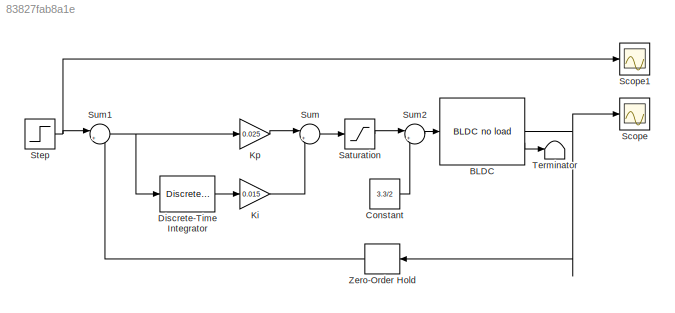
MODEL slx_83827fab8a1e
KIND model
CONFIG AbsTol = auto
CONFIG EnableMultiTasking = on
CONFIG FixedStep = auto
CONFIG MaxStep = auto
CONFIG MinStep = auto
CONFIG RelTol = 1e-3
CONFIG SampleTimeConstraint = Unconstrained
CONFIG SolverName = VariableStepAuto
CONFIG StartTime = 0.0
CONFIG StopTime = 10
BLOCK [Reference] BLDC  REF=aausat3_lib/Actuator Emulation/BLDC no load  (lib defined in mdl_4157f6465749, slx_d9305f96731e)
  SourceBlock = aausat3_lib/Actuator Emulation/BLDC no load
  SourceProductName = AAUSAT3
BLOCK [Constant] Constant
  Value = 3.3/2
BLOCK [DiscreteIntegrator] Discrete-Time Integrator
  ICPrevOutput = DiscIntNeverNeededParam
  ICPrevScaledInput = DiscIntNeverNeededParam
  InitialConditionSetting = Auto
  LimitOutput = on
  LowerSaturationLimit = -100
  SampleTime = 1/20
  UpperSaturationLimit = 100
BLOCK [Gain] Ki
  Gain = 0.015
BLOCK [Gain] Kp
  Gain = 0.025
BLOCK [Saturate] Saturation
  LowerLimit = -3.3/2
  UpperLimit = 3.3/2
BLOCK [Scope] Scope
  Floating = off
  NumInputPorts = 1
  ScopeSpecificationString = Simulink.scopes.TimeScopeBlockCfg('CurrentConfiguration', extmgr.ConfigurationSet(extmgr.Configuration('Core','General UI',true),extmgr.Configuration('Core','Source UI',true),extmgr.Configuration('Sources','WiredSimulink',true),extmgr.Configuration('Visuals','Time Domain',true,'SerializedDisplays',{struct('MinYLimReal','699.82532','MaxYLimReal','1701.57211','YLabelReal','','MinYLimMag','699.82532'...<+1749ch>
BLOCK [Scope] Scope1
  Floating = off
  NumInputPorts = 1
  ScopeSpecificationString = Simulink.scopes.TimeScopeBlockCfg('CurrentConfiguration', extmgr.ConfigurationSet(extmgr.Configuration('Core','General UI',true),extmgr.Configuration('Core','Source UI',true),extmgr.Configuration('Sources','WiredSimulink',true,'DataLoggingVariableName','ScopeData1'),extmgr.Configuration('Visuals','Time Domain',true,'SerializedDisplays',{struct('MinYLimReal','462.5','MaxYLimReal','837.5','YLabelRea...<+1420ch>
BLOCK [Step] Step
  After = 1600
  Before = 800
  SampleTime = 1
BLOCK [Sum] Sum
  Inputs = |++
BLOCK [Sum] Sum1
  Inputs = |+-
BLOCK [Sum] Sum2
  Inputs = |++
BLOCK [Terminator] Terminator
BLOCK [ZeroOrderHold] Zero-Order Hold
  SampleTime = 1/20
NET BLDC:1 -> Scope:1, Zero-Order Hold:1
LINE BLDC:2 -> Terminator:1
LINE Constant:1 -> Sum2:2
LINE Discrete-Time Integrator:1 -> Ki:1
LINE Ki:1 -> Sum:2
LINE Kp:1 -> Sum:1
LINE Saturation:1 -> Sum2:1
NET Step:1 -> Scope1:1, Sum1:1
NET Sum1:1 -> Discrete-Time Integrator:1, Kp:1
LINE Sum2:1 -> BLDC:1
LINE Sum:1 -> Saturation:1
LINE Zero-Order Hold:1 -> Sum1:2
note: NET lines group one-source signal fan-out (src -> all destinations, sorted); 1:1 wires keep LINE
